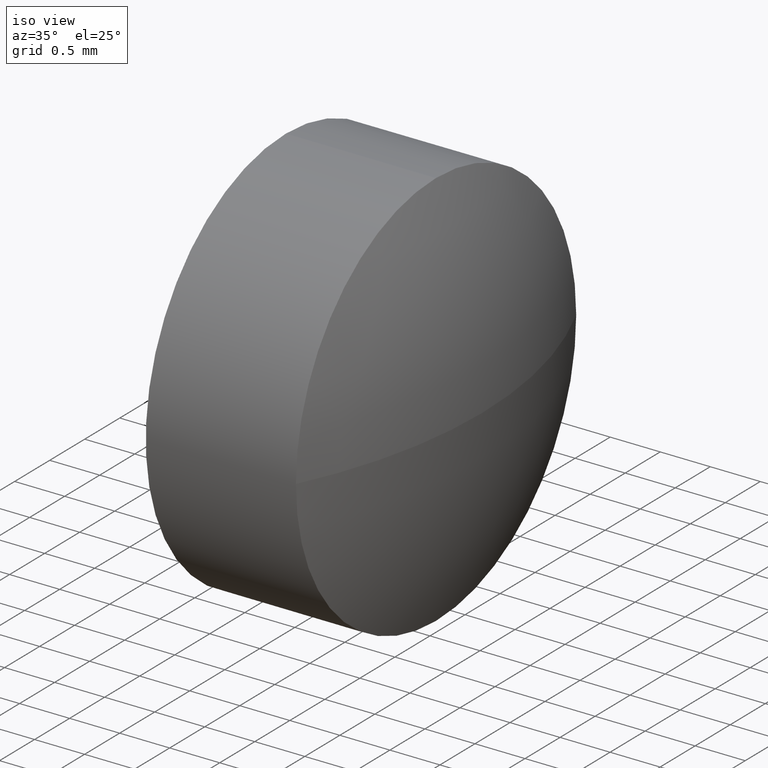
[diagram: clean part render]
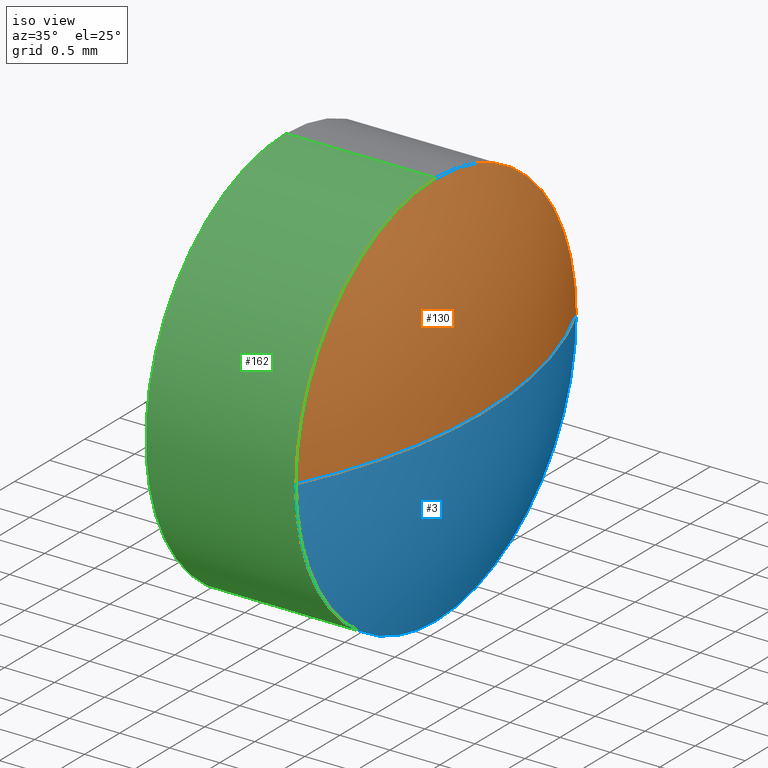
[diagram: same view with three faces highlighted in distinct colors, each labeled with its STEP entity id]
A machine part, iso view with three faces highlighted in distinct colors.
Their STEP definitions:

[orange] entity #130 — the highlighted spherical surface has radius 4.5778 mm.
#4 = AXIS2_PLACEMENT_3D ( 'NONE', #156, #8, #122 ) ;
#8 = DIRECTION ( 'NONE',  ( -1.000000000000000000, -0.0000000000000000000, -0.0000000000000000000 ) ) ;
#9 = VERTEX_POINT ( 'NONE', #179 ) ;
#12 = CARTESIAN_POINT ( 'NONE',  ( 418.9449177201196300, 167.1088649650341700, 0.0000000000000000000 ) ) ;
#15 = AXIS2_PLACEMENT_3D ( 'NONE', #68, #159, #69 ) ;
#19 = SPHERICAL_SURFACE ( 'NONE', #15, 4.577826086956557500 ) ;
#22 = CARTESIAN_POINT ( 'NONE',  ( 414.3670916331631100, 167.1088649650341700, 0.0000000000000000000 ) ) ;
#29 = ORIENTED_EDGE ( 'NONE', *, *, #121, .F. ) ;
#30 = AXIS2_PLACEMENT_3D ( 'NONE', #22, #49, #62 ) ;
#31 = EDGE_LOOP ( 'NONE', ( #105, #67, #29, #91 ) ) ;
#33 = DIRECTION ( 'NONE',  ( -1.000000000000000000, -0.0000000000000000000, -0.0000000000000000000 ) ) ;
#37 = DIRECTION ( 'NONE',  ( 0.0000000000000000000, 1.224646799147353200E-016, -1.000000000000000000 ) ) ;
#39 = CIRCLE ( 'NONE', #73, 4.577826086956560100 ) ;
#49 = DIRECTION ( 'NONE',  ( -0.0000000000000000000, 0.0000000000000000000, 1.000000000000000000 ) ) ;
#59 = CIRCLE ( 'NONE', #30, 4.577826086956560100 ) ;
#62 = DIRECTION ( 'NONE',  ( 1.000000000000000000, 0.0000000000000000000, 0.0000000000000000000 ) ) ;
#67 = ORIENTED_EDGE ( 'NONE', *, *, #102, .T. ) ;
#68 = CARTESIAN_POINT ( 'NONE',  ( 414.3670916331631100, 167.1088649650341700, 0.0000000000000000000 ) ) ;
#69 = DIRECTION ( 'NONE',  ( 0.0000000000000000000, 1.000000000000000000, 0.0000000000000000000 ) ) ;
#73 = AXIS2_PLACEMENT_3D ( 'NONE', #172, #37, #109 ) ;
#82 = DIRECTION ( 'NONE',  ( 0.0000000000000000000, 0.0000000000000000000, 1.000000000000000000 ) ) ;
#85 = CIRCLE ( 'NONE', #4, 2.000000000000001800 ) ;
#91 = ORIENTED_EDGE ( 'NONE', *, *, #92, .F. ) ;
#92 = EDGE_CURVE ( 'NONE', #157, #114, #85, .T. ) ;
#99 = AXIS2_PLACEMENT_3D ( 'NONE', #119, #33, #82 ) ;
#102 = EDGE_CURVE ( 'NONE', #177, #9, #59, .T. ) ;
#105 = ORIENTED_EDGE ( 'NONE', *, *, #184, .F. ) ;
#109 = DIRECTION ( 'NONE',  ( 0.0000000000000000000, 1.000000000000000000, 1.224646799147352500E-016 ) ) ;
#114 = VERTEX_POINT ( 'NONE', #141 ) ;
#119 = CARTESIAN_POINT ( 'NONE',  ( 418.4849177201196500, 167.1088649650342000, 0.0000000000000000000 ) ) ;
#121 = EDGE_CURVE ( 'NONE', #114, #9, #132, .T. ) ;
#122 = DIRECTION ( 'NONE',  ( 0.0000000000000000000, 0.0000000000000000000, 1.000000000000000000 ) ) ;
#130 = ADVANCED_FACE ( 'NONE', ( #167 ), #19, .T. ) ;
#132 = CIRCLE ( 'NONE', #99, 2.000000000000001800 ) ;
#141 = CARTESIAN_POINT ( 'NONE',  ( 418.4849177201196500, 167.1088649650342000, 2.000000000000001800 ) ) ;
#143 = CARTESIAN_POINT ( 'NONE',  ( 418.4849177201196500, 165.1088649650341400, -2.449293598294713300E-016 ) ) ;
#156 = CARTESIAN_POINT ( 'NONE',  ( 418.4849177201196500, 167.1088649650342000, 0.0000000000000000000 ) ) ;
#157 = VERTEX_POINT ( 'NONE', #143 ) ;
#159 = DIRECTION ( 'NONE',  ( -0.0000000000000000000, 0.0000000000000000000, -1.000000000000000000 ) ) ;
#167 = FACE_OUTER_BOUND ( 'NONE', #31, .T. ) ;
#172 = CARTESIAN_POINT ( 'NONE',  ( 414.3670916331631100, 167.1088649650341700, 0.0000000000000000000 ) ) ;
#177 = VERTEX_POINT ( 'NONE', #12 ) ;
#179 = CARTESIAN_POINT ( 'NONE',  ( 418.4849177201196500, 169.1088649650342000, 0.0000000000000000000 ) ) ;
#184 = EDGE_CURVE ( 'NONE', #177, #157, #39, .T. ) ;

[blue] entity #3 — the highlighted spherical surface has radius 4.5778 mm.
#3 = ADVANCED_FACE ( 'NONE', ( #80 ), #158, .T. ) ;
#9 = VERTEX_POINT ( 'NONE', #179 ) ;
#12 = CARTESIAN_POINT ( 'NONE',  ( 418.9449177201196300, 167.1088649650341700, 0.0000000000000000000 ) ) ;
#16 = CIRCLE ( 'NONE', #134, 2.000000000000001800 ) ;
#20 = CARTESIAN_POINT ( 'NONE',  ( 414.3670916331631100, 167.1088649650341700, 0.0000000000000000000 ) ) ;
#21 = DIRECTION ( 'NONE',  ( 0.0000000000000000000, 0.0000000000000000000, 1.000000000000000000 ) ) ;
#22 = CARTESIAN_POINT ( 'NONE',  ( 414.3670916331631100, 167.1088649650341700, 0.0000000000000000000 ) ) ;
#30 = AXIS2_PLACEMENT_3D ( 'NONE', #22, #49, #62 ) ;
#37 = DIRECTION ( 'NONE',  ( 0.0000000000000000000, 1.224646799147353200E-016, -1.000000000000000000 ) ) ;
#39 = CIRCLE ( 'NONE', #73, 4.577826086956560100 ) ;
#44 = ORIENTED_EDGE ( 'NONE', *, *, #102, .F. ) ;
#45 = EDGE_CURVE ( 'NONE', #9, #140, #142, .T. ) ;
#49 = DIRECTION ( 'NONE',  ( -0.0000000000000000000, 0.0000000000000000000, 1.000000000000000000 ) ) ;
#50 = CARTESIAN_POINT ( 'NONE',  ( 418.4849177201196500, 167.1088649650342000, 0.0000000000000000000 ) ) ;
#59 = CIRCLE ( 'NONE', #30, 4.577826086956560100 ) ;
#62 = DIRECTION ( 'NONE',  ( 1.000000000000000000, 0.0000000000000000000, 0.0000000000000000000 ) ) ;
#70 = EDGE_CURVE ( 'NONE', #140, #157, #16, .T. ) ;
#73 = AXIS2_PLACEMENT_3D ( 'NONE', #172, #37, #109 ) ;
#75 = DIRECTION ( 'NONE',  ( 0.0000000000000000000, 1.000000000000000000, 0.0000000000000000000 ) ) ;
#80 = FACE_OUTER_BOUND ( 'NONE', #164, .T. ) ;
#83 = AXIS2_PLACEMENT_3D ( 'NONE', #89, #138, #118 ) ;
#86 = AXIS2_PLACEMENT_3D ( 'NONE', #20, #135, #75 ) ;
#89 = CARTESIAN_POINT ( 'NONE',  ( 418.4849177201196500, 167.1088649650342000, 0.0000000000000000000 ) ) ;
#102 = EDGE_CURVE ( 'NONE', #177, #9, #59, .T. ) ;
#103 = DIRECTION ( 'NONE',  ( -1.000000000000000000, -0.0000000000000000000, -0.0000000000000000000 ) ) ;
#109 = DIRECTION ( 'NONE',  ( 0.0000000000000000000, 1.000000000000000000, 1.224646799147352500E-016 ) ) ;
#118 = DIRECTION ( 'NONE',  ( 0.0000000000000000000, 0.0000000000000000000, 1.000000000000000000 ) ) ;
#133 = ORIENTED_EDGE ( 'NONE', *, *, #70, .F. ) ;
#134 = AXIS2_PLACEMENT_3D ( 'NONE', #50, #103, #21 ) ;
#135 = DIRECTION ( 'NONE',  ( -0.0000000000000000000, 0.0000000000000000000, -1.000000000000000000 ) ) ;
#138 = DIRECTION ( 'NONE',  ( -1.000000000000000000, -0.0000000000000000000, -0.0000000000000000000 ) ) ;
#140 = VERTEX_POINT ( 'NONE', #160 ) ;
#142 = CIRCLE ( 'NONE', #83, 2.000000000000001800 ) ;
#143 = CARTESIAN_POINT ( 'NONE',  ( 418.4849177201196500, 165.1088649650341400, -2.449293598294713300E-016 ) ) ;
#149 = ORIENTED_EDGE ( 'NONE', *, *, #184, .T. ) ;
#151 = ORIENTED_EDGE ( 'NONE', *, *, #45, .F. ) ;
#157 = VERTEX_POINT ( 'NONE', #143 ) ;
#158 = SPHERICAL_SURFACE ( 'NONE', #86, 4.577826086956557500 ) ;
#160 = CARTESIAN_POINT ( 'NONE',  ( 418.4849177201196500, 167.1088649650342000, -2.000000000000001800 ) ) ;
#164 = EDGE_LOOP ( 'NONE', ( #44, #149, #133, #151 ) ) ;
#172 = CARTESIAN_POINT ( 'NONE',  ( 414.3670916331631100, 167.1088649650341700, 0.0000000000000000000 ) ) ;
#177 = VERTEX_POINT ( 'NONE', #12 ) ;
#179 = CARTESIAN_POINT ( 'NONE',  ( 418.4849177201196500, 169.1088649650342000, 0.0000000000000000000 ) ) ;
#184 = EDGE_CURVE ( 'NONE', #177, #157, #39, .T. ) ;

[green] entity #162 — the highlighted cylindrical surface (partial cylindrical patch) has radius 2 mm, axis along (-1, -0, -0).
#4 = AXIS2_PLACEMENT_3D ( 'NONE', #156, #8, #122 ) ;
#6 = EDGE_CURVE ( 'NONE', #140, #18, #74, .T. ) ;
#8 = DIRECTION ( 'NONE',  ( -1.000000000000000000, -0.0000000000000000000, -0.0000000000000000000 ) ) ;
#16 = CIRCLE ( 'NONE', #134, 2.000000000000001800 ) ;
#18 = VERTEX_POINT ( 'NONE', #152 ) ;
#21 = DIRECTION ( 'NONE',  ( 0.0000000000000000000, 0.0000000000000000000, 1.000000000000000000 ) ) ;
#28 = DIRECTION ( 'NONE',  ( -1.000000000000000000, -0.0000000000000000000, -0.0000000000000000000 ) ) ;
#32 = CARTESIAN_POINT ( 'NONE',  ( 416.9849177201196500, 167.1088649650342000, 2.000000000000001800 ) ) ;
#46 = EDGE_CURVE ( 'NONE', #18, #78, #137, .T. ) ;
#48 = CARTESIAN_POINT ( 'NONE',  ( 416.5568110260729800, 167.1088649650342000, -2.000000000000001800 ) ) ;
#50 = CARTESIAN_POINT ( 'NONE',  ( 418.4849177201196500, 167.1088649650342000, 0.0000000000000000000 ) ) ;
#51 = VECTOR ( 'NONE', #178, 1000.000000000000000 ) ;
#54 = VECTOR ( 'NONE', #107, 1000.000000000000000 ) ;
#58 = CARTESIAN_POINT ( 'NONE',  ( 416.5568110260729800, 167.1088649650342000, 0.0000000000000000000 ) ) ;
#66 = DIRECTION ( 'NONE',  ( 0.0000000000000000000, 0.0000000000000000000, 1.000000000000000000 ) ) ;
#70 = EDGE_CURVE ( 'NONE', #140, #157, #16, .T. ) ;
#71 = ORIENTED_EDGE ( 'NONE', *, *, #175, .T. ) ;
#74 = LINE ( 'NONE', #48, #51 ) ;
#76 = ORIENTED_EDGE ( 'NONE', *, *, #46, .F. ) ;
#78 = VERTEX_POINT ( 'NONE', #32 ) ;
#85 = CIRCLE ( 'NONE', #4, 2.000000000000001800 ) ;
#90 = CARTESIAN_POINT ( 'NONE',  ( 416.9849177201196500, 167.1088649650342000, 0.0000000000000000000 ) ) ;
#92 = EDGE_CURVE ( 'NONE', #157, #114, #85, .T. ) ;
#94 = FACE_OUTER_BOUND ( 'NONE', #113, .T. ) ;
#101 = ORIENTED_EDGE ( 'NONE', *, *, #92, .T. ) ;
#103 = DIRECTION ( 'NONE',  ( -1.000000000000000000, -0.0000000000000000000, -0.0000000000000000000 ) ) ;
#106 = CARTESIAN_POINT ( 'NONE',  ( 416.5568110260729800, 167.1088649650342000, 2.000000000000001800 ) ) ;
#107 = DIRECTION ( 'NONE',  ( -1.000000000000000000, -0.0000000000000000000, -0.0000000000000000000 ) ) ;
#110 = AXIS2_PLACEMENT_3D ( 'NONE', #90, #180, #153 ) ;
#113 = EDGE_LOOP ( 'NONE', ( #165, #185, #101, #71, #76 ) ) ;
#114 = VERTEX_POINT ( 'NONE', #141 ) ;
#116 = CYLINDRICAL_SURFACE ( 'NONE', #166, 2.000000000000001800 ) ;
#122 = DIRECTION ( 'NONE',  ( 0.0000000000000000000, 0.0000000000000000000, 1.000000000000000000 ) ) ;
#134 = AXIS2_PLACEMENT_3D ( 'NONE', #50, #103, #21 ) ;
#137 = CIRCLE ( 'NONE', #110, 2.000000000000001800 ) ;
#140 = VERTEX_POINT ( 'NONE', #160 ) ;
#141 = CARTESIAN_POINT ( 'NONE',  ( 418.4849177201196500, 167.1088649650342000, 2.000000000000001800 ) ) ;
#143 = CARTESIAN_POINT ( 'NONE',  ( 418.4849177201196500, 165.1088649650341400, -2.449293598294713300E-016 ) ) ;
#152 = CARTESIAN_POINT ( 'NONE',  ( 416.9849177201196500, 167.1088649650342000, -2.000000000000001800 ) ) ;
#153 = DIRECTION ( 'NONE',  ( 0.0000000000000000000, 0.0000000000000000000, 1.000000000000000000 ) ) ;
#156 = CARTESIAN_POINT ( 'NONE',  ( 418.4849177201196500, 167.1088649650342000, 0.0000000000000000000 ) ) ;
#157 = VERTEX_POINT ( 'NONE', #143 ) ;
#160 = CARTESIAN_POINT ( 'NONE',  ( 418.4849177201196500, 167.1088649650342000, -2.000000000000001800 ) ) ;
#162 = ADVANCED_FACE ( 'NONE', ( #94 ), #116, .T. ) ;
#165 = ORIENTED_EDGE ( 'NONE', *, *, #6, .F. ) ;
#166 = AXIS2_PLACEMENT_3D ( 'NONE', #58, #28, #66 ) ;
#170 = LINE ( 'NONE', #106, #54 ) ;
#175 = EDGE_CURVE ( 'NONE', #114, #78, #170, .T. ) ;
#178 = DIRECTION ( 'NONE',  ( -1.000000000000000000, -0.0000000000000000000, -0.0000000000000000000 ) ) ;
#180 = DIRECTION ( 'NONE',  ( -1.000000000000000000, -0.0000000000000000000, -0.0000000000000000000 ) ) ;
#185 = ORIENTED_EDGE ( 'NONE', *, *, #70, .T. ) ;